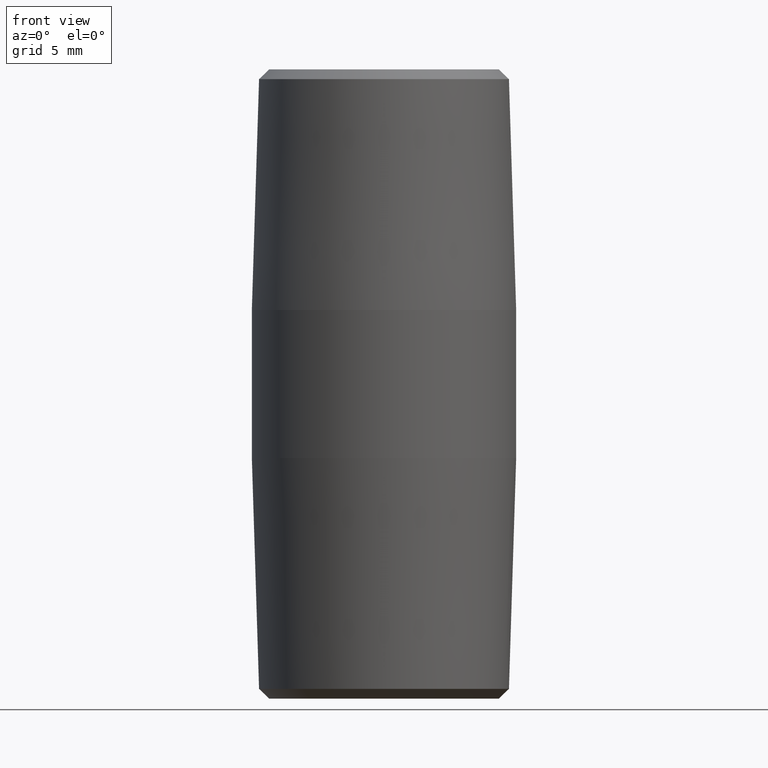
[diagram: clean part render]
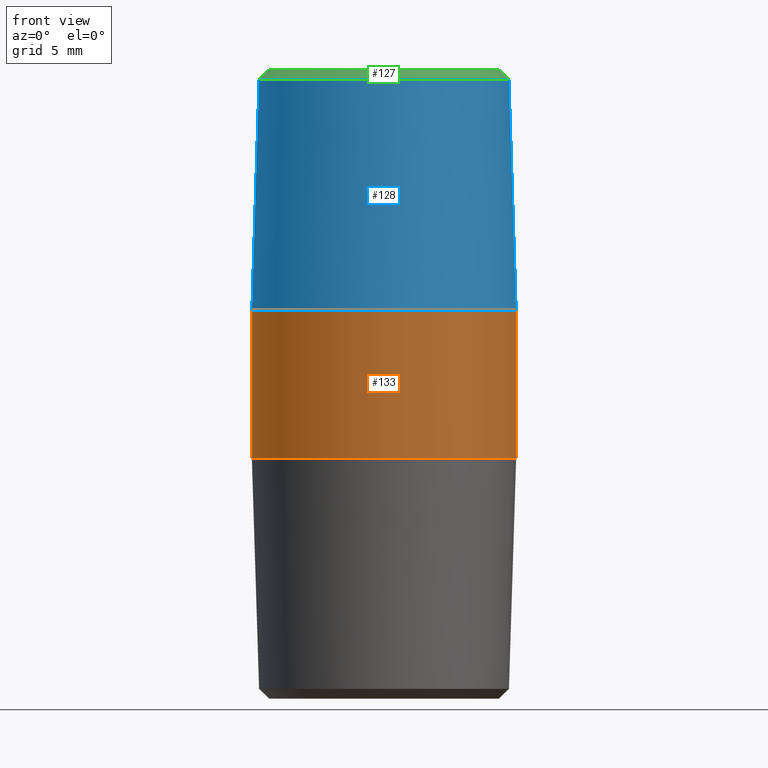
[diagram: same view with three faces highlighted in distinct colors, each labeled with its STEP entity id]
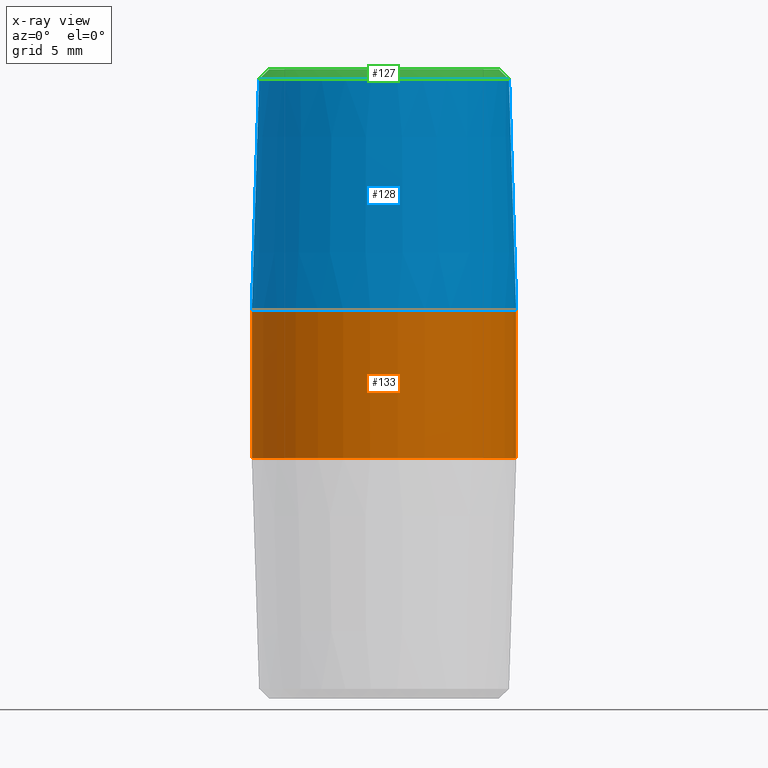
[diagram: x-ray of the same camera — body ghosted, the three highlighted faces saturated]
A machine part, front view with three faces highlighted in distinct colors.
The next image is the same camera in x-ray (body ghosted, the three faces saturated) — at least one of them is partly hidden behind the body in this view.
Their STEP definitions:

[orange] entity #133 — the highlighted cylindrical surface (bore or boss wall) has radius 10.668 mm, axis along (0, 0, 1).
#29=FACE_OUTER_BOUND('',#39,.T.);
#39=EDGE_LOOP('',(#110,#111,#112,#113,#114));
#45=LINE('',#245,#51);
#51=VECTOR('',#212,0.42);
#56=CIRCLE('',#161,0.42);
#59=CIRCLE('',#167,0.42);
#60=CIRCLE('',#168,0.42);
#65=VERTEX_POINT('',#227);
#68=VERTEX_POINT('',#238);
#69=VERTEX_POINT('',#240);
#77=EDGE_CURVE('',#65,#65,#56,.T.);
#82=EDGE_CURVE('',#69,#68,#59,.T.);
#83=EDGE_CURVE('',#68,#69,#60,.T.);
#84=EDGE_CURVE('',#65,#69,#45,.T.);
#110=ORIENTED_EDGE('',*,*,#77,.T.);
#111=ORIENTED_EDGE('',*,*,#84,.T.);
#112=ORIENTED_EDGE('',*,*,#82,.T.);
#113=ORIENTED_EDGE('',*,*,#83,.T.);
#114=ORIENTED_EDGE('',*,*,#84,.F.);
#116=CYLINDRICAL_SURFACE('',#170,0.42);
#133=ADVANCED_FACE('',(#29),#116,.T.);
#161=AXIS2_PLACEMENT_3D('',#229,#190,#191);
#167=AXIS2_PLACEMENT_3D('',#241,#204,#205);
#168=AXIS2_PLACEMENT_3D('',#242,#206,#207);
#170=AXIS2_PLACEMENT_3D('',#244,#210,#211);
#190=DIRECTION('center_axis',(0.,0.,-1.));
#191=DIRECTION('ref_axis',(-1.,0.,0.));
#204=DIRECTION('center_axis',(0.,0.,1.));
#205=DIRECTION('ref_axis',(-1.,0.,0.));
#206=DIRECTION('center_axis',(0.,0.,1.));
#207=DIRECTION('ref_axis',(-1.,0.,0.));
#210=DIRECTION('center_axis',(0.,0.,1.));
#211=DIRECTION('ref_axis',(-1.,0.,0.));
#212=DIRECTION('',(0.,0.,-1.));
#227=CARTESIAN_POINT('',(0.42,5.14351655641888E-17,0.235));
#229=CARTESIAN_POINT('Origin',(0.,0.,0.235));
#238=CARTESIAN_POINT('',(-0.42,5.14351655641888E-17,-0.235));
#240=CARTESIAN_POINT('',(0.42,5.14351655641888E-17,-0.235));
#241=CARTESIAN_POINT('Origin',(0.,0.,-0.235));
#242=CARTESIAN_POINT('Origin',(0.,0.,-0.235));
#244=CARTESIAN_POINT('Origin',(0.,0.,0.));
#245=CARTESIAN_POINT('',(0.42,5.14351655641888E-17,0.));

[blue] entity #128 — the highlighted conical surface has half-angle 1.79 deg.
#19=CONICAL_SURFACE('',#160,0.42,0.0312413936106985);
#24=FACE_OUTER_BOUND('',#32,.T.);
#32=EDGE_LOOP('',(#93,#94,#95,#96));
#42=LINE('',#228,#48);
#48=VECTOR('',#189,0.42);
#54=CIRCLE('',#158,0.39706869004);
#56=CIRCLE('',#161,0.42);
#63=VERTEX_POINT('',#221);
#65=VERTEX_POINT('',#227);
#73=EDGE_CURVE('',#63,#63,#54,.T.);
#76=EDGE_CURVE('',#63,#65,#42,.T.);
#77=EDGE_CURVE('',#65,#65,#56,.T.);
#93=ORIENTED_EDGE('',*,*,#73,.F.);
#94=ORIENTED_EDGE('',*,*,#76,.T.);
#95=ORIENTED_EDGE('',*,*,#77,.F.);
#96=ORIENTED_EDGE('',*,*,#76,.F.);
#128=ADVANCED_FACE('',(#24),#19,.T.);
#158=AXIS2_PLACEMENT_3D('',#222,#182,#183);
#160=AXIS2_PLACEMENT_3D('',#226,#187,#188);
#161=AXIS2_PLACEMENT_3D('',#229,#190,#191);
#182=DIRECTION('center_axis',(0.,0.,1.));
#183=DIRECTION('ref_axis',(-1.,-6.12303176911189E-17,0.));
#187=DIRECTION('center_axis',(0.,0.,-1.));
#188=DIRECTION('ref_axis',(-1.,0.,0.));
#189=DIRECTION('',(0.0312363117968641,3.82534492591983E-18,-0.999512027354013));
#190=DIRECTION('center_axis',(0.,0.,-1.));
#191=DIRECTION('ref_axis',(-1.,0.,0.));
#221=CARTESIAN_POINT('',(0.39706869004,9.72505681453825E-17,0.968765249145187));
#222=CARTESIAN_POINT('Origin',(0.,2.43126420363456E-17,0.968765249145187));
#226=CARTESIAN_POINT('Origin',(0.,0.,0.235));
#227=CARTESIAN_POINT('',(0.42,5.14351655641888E-17,0.235));
#228=CARTESIAN_POINT('',(0.42,5.14351655641888E-17,0.235));
#229=CARTESIAN_POINT('Origin',(0.,0.,0.235));

[green] entity #127 — the highlighted conical surface has half-angle 45.895 deg.
#18=CONICAL_SURFACE('',#157,0.380955622668174,0.801018860202792);
#23=FACE_OUTER_BOUND('',#31,.T.);
#31=EDGE_LOOP('',(#89,#90,#91,#92));
#41=LINE('',#224,#47);
#47=VECTOR('',#184,0.380955622668174);
#54=CIRCLE('',#158,0.39706869004);
#55=CIRCLE('',#159,0.364842555296348);
#63=VERTEX_POINT('',#221);
#64=VERTEX_POINT('',#223);
#73=EDGE_CURVE('',#63,#63,#54,.T.);
#74=EDGE_CURVE('',#63,#64,#41,.T.);
#75=EDGE_CURVE('',#64,#64,#55,.T.);
#89=ORIENTED_EDGE('',*,*,#73,.T.);
#90=ORIENTED_EDGE('',*,*,#74,.T.);
#91=ORIENTED_EDGE('',*,*,#75,.T.);
#92=ORIENTED_EDGE('',*,*,#74,.F.);
#127=ADVANCED_FACE('',(#23),#18,.T.);
#157=AXIS2_PLACEMENT_3D('',#220,#180,#181);
#158=AXIS2_PLACEMENT_3D('',#222,#182,#183);
#159=AXIS2_PLACEMENT_3D('',#225,#185,#186);
#180=DIRECTION('center_axis',(0.,7.78384375446333E-16,-1.));
#181=DIRECTION('ref_axis',(-1.,-3.1910071133827E-17,0.));
#182=DIRECTION('center_axis',(0.,0.,1.));
#183=DIRECTION('ref_axis',(-1.,-6.12303176911189E-17,0.));
#184=DIRECTION('',(-0.718065565180803,-4.76712279201996E-16,0.695975462284105));
#185=DIRECTION('center_axis',(0.,0.,-1.));
#186=DIRECTION('ref_axis',(-1.,0.,0.));
#220=CARTESIAN_POINT('Origin',(0.,1.21563210181728E-17,0.984382624572593));
#221=CARTESIAN_POINT('',(0.39706869004,9.72505681453825E-17,0.968765249145187));
#222=CARTESIAN_POINT('Origin',(0.,2.43126420363456E-17,0.968765249145187));
#223=CARTESIAN_POINT('',(0.364842555296348,-4.467885113607E-17,1.));
#224=CARTESIAN_POINT('',(0.380955622668174,-2.2340966355431E-17,0.984382624572593));
#225=CARTESIAN_POINT('Origin',(0.,0.,1.));